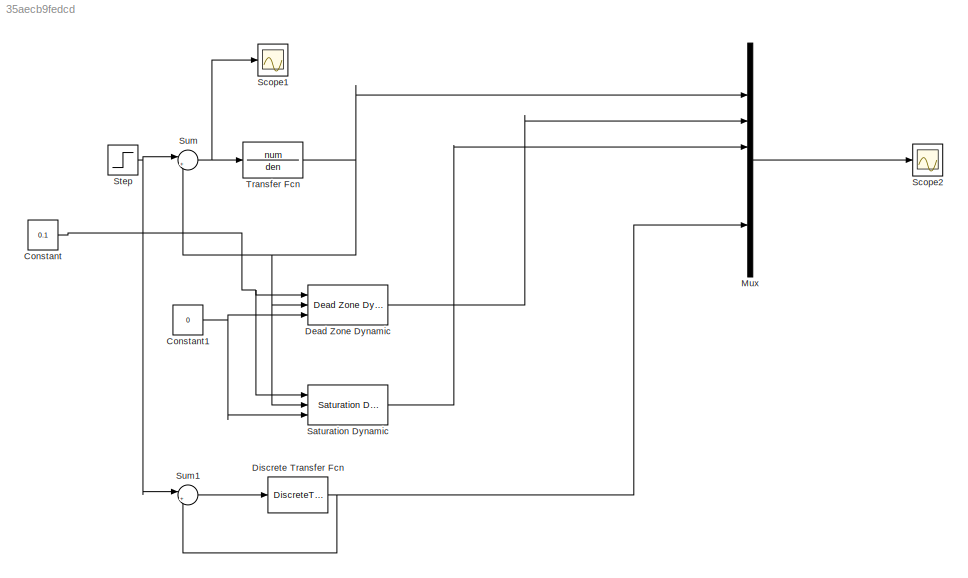
MODEL slx_35aecb9fedcd
KIND model
CONFIG AbsTol = auto
CONFIG FixedStep = auto
CONFIG MaxStep = auto
CONFIG MinStep = auto
CONFIG RelTol = 1e-3
CONFIG SampleTimeConstraint = Unconstrained
CONFIG Solver = ode45
CONFIG SolverMode = Auto
CONFIG SolverName = ode45
CONFIG StartTime = 0.0
CONFIG StopTime = 2
BLOCK [Constant] Constant
  Value = 0.1
BLOCK [Constant] Constant1
  Value = 0
BLOCK [Reference] Dead Zone Dynamic  REF=simulink/Discontinuities/Dead Zone
Dynamic
  Ports = [3, 1]
  SourceBlock = simulink/Discontinuities/Dead Zone\nDynamic
  SourceType = Dead Zone Dynamic
BLOCK [DiscreteTransferFcn] Discrete Transfer Fcn
  Denominator = dend
  InputPortMap = u0
  Numerator = numd
  Ports = [1, 1]
  SampleTime = Ts
BLOCK [Mux] Mux
  DisplayOption = bar
  Inputs = 8
  Ports = [8, 1]
BLOCK [Reference] Saturation Dynamic  REF=simulink/Discontinuities/Saturation
Dynamic
  DoSatur = off
  LockScale = off
  OutDataType = fixdt(1, 16)
  OutDataTypeStr = Inherit: Same as second input
  OutMax = []
  OutMin = []
  OutScaling = 2^-10
  OutputDataTypeScalingMode = Same as second input
  Ports = [3, 1]
  RndMeth = Floor
  SourceBlock = simulink/Discontinuities/Saturation\nDynamic
  SourceType = Saturation Dynamic
BLOCK [Scope] Scope1
  Floating = off
  NumInputPorts = 1
  Ports = [1]
  SaveName = ScopeData1
BLOCK [Scope] Scope2
  Floating = off
  NumInputPorts = 1
  Ports = [1]
  SaveName = ScopeData2
BLOCK [Step] Step
  SampleTime = 0
  Time = 0
BLOCK [Sum] Sum
  IconShape = round
  InputSameDT = off
  Inputs = |+-
  OutDataTypeStr = Inherit: Inherit via internal rule
  Ports = [2, 1]
  SaturateOnIntegerOverflow = off
BLOCK [Sum] Sum1
  IconShape = round
  InputSameDT = off
  Inputs = |+-
  OutDataTypeStr = Inherit: Inherit via internal rule
  Ports = [2, 1]
  SaturateOnIntegerOverflow = off
BLOCK [TransferFcn] Transfer Fcn
  Denominator = den
  Numerator = num
NET Constant1:1 -> Dead Zone Dynamic:3, Saturation Dynamic:3
NET Constant:1 -> Dead Zone Dynamic:1, Saturation Dynamic:1
LINE Dead Zone Dynamic:1 -> Mux:3
NET Discrete Transfer Fcn:1 -> Mux:7, Sum1:2
LINE Mux:1 -> Scope2:1
LINE Saturation Dynamic:1 -> Mux:4
NET Step:1 -> Sum1:1, Sum:1
LINE Sum1:1 -> Discrete Transfer Fcn:1
NET Sum:1 -> Scope1:1, Transfer Fcn:1
NET Transfer Fcn:1 -> Dead Zone Dynamic:2, Mux:2, Saturation Dynamic:2, Sum:2
note: NET lines group one-source signal fan-out (src -> all destinations, sorted); 1:1 wires keep LINE
